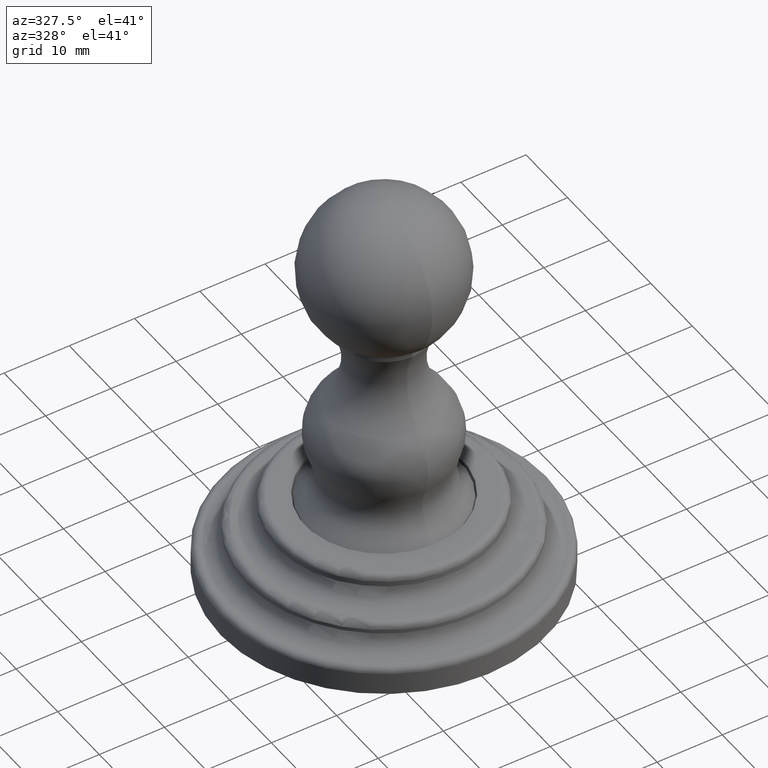
[diagram: clean part render]
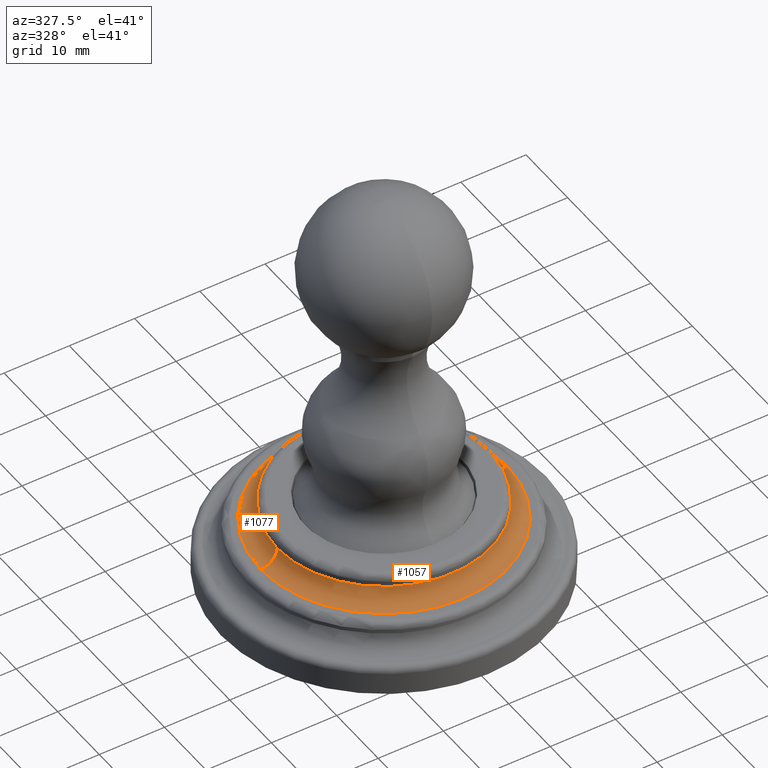
[diagram: same view with one multi-face feature highlighted, each face labeled with its STEP entity id]
A machine part, auxiliary view. The highlighted faces form ONE feature: a constant-radius fillet chain: 2 tangent blend faces with common blend radius 2.4892 mm. The faces share edges in the B-rep.
Their STEP definitions:
[1] entity #1077 (Torus):
#354=CARTESIAN_POINT('',(-7.44E-1,0.E0,4.3E-1));
#355=DIRECTION('',(0.E0,-1.E0,0.E0));
#356=DIRECTION('',(0.E0,0.E0,-1.E0));
#357=AXIS2_PLACEMENT_3D('',#354,#355,#356);
#362=CARTESIAN_POINT('',(-1.228711626521E-14,0.E0,3.32E-1));
#363=DIRECTION('',(0.E0,0.E0,-1.E0));
#364=DIRECTION('',(-1.E0,0.E0,0.E0));
#365=AXIS2_PLACEMENT_3D('',#362,#363,#364);
#370=CARTESIAN_POINT('',(7.44E-1,0.E0,4.3E-1));
#371=DIRECTION('',(0.E0,1.E0,0.E0));
#372=DIRECTION('',(0.E0,0.E0,-1.E0));
#373=AXIS2_PLACEMENT_3D('',#370,#371,#372);
#393=CARTESIAN_POINT('',(-1.229911780384E-14,0.E0,4.3E-1));
#394=DIRECTION('',(0.E0,0.E0,-1.E0));
#395=DIRECTION('',(-1.E0,0.E0,0.E0));
#396=AXIS2_PLACEMENT_3D('',#393,#394,#395);
#694=CARTESIAN_POINT('',(-7.44E-1,0.E0,3.32E-1));
#695=CARTESIAN_POINT('',(-6.46E-1,0.E0,4.3E-1));
#696=VERTEX_POINT('',#694);
#697=VERTEX_POINT('',#695);
#702=CARTESIAN_POINT('',(7.44E-1,0.E0,3.32E-1));
#703=CARTESIAN_POINT('',(6.46E-1,0.E0,4.3E-1));
#704=VERTEX_POINT('',#702);
#705=VERTEX_POINT('',#703);
#1065=CARTESIAN_POINT('',(-1.229911780384E-14,0.E0,4.3E-1));
#1066=DIRECTION('',(0.E0,0.E0,1.E0));
#1067=DIRECTION('',(-1.E0,0.E0,0.E0));
#1068=AXIS2_PLACEMENT_3D('',#1065,#1066,#1067);
#1069=TOROIDAL_SURFACE('',#1068,7.44E-1,9.8E-2);
#1070=ORIENTED_EDGE('',*,*,#1048,.F.);
#1071=ORIENTED_EDGE('',*,*,#992,.T.);
#1072=ORIENTED_EDGE('',*,*,#1052,.T.);
#1074=ORIENTED_EDGE('',*,*,#1073,.F.);
#1075=EDGE_LOOP('',(#1070,#1071,#1072,#1074));
#1076=FACE_OUTER_BOUND('',#1075,.F.);
#358=CIRCLE('',#357,9.8E-2);
#366=CIRCLE('',#365,7.44E-1);
#374=CIRCLE('',#373,9.8E-2);
#397=CIRCLE('',#396,6.46E-1);
#992=EDGE_CURVE('',#696,#704,#366,.T.);
#1048=EDGE_CURVE('',#696,#697,#358,.T.);
#1052=EDGE_CURVE('',#704,#705,#374,.T.);
#1073=EDGE_CURVE('',#697,#705,#397,.T.);
#1077=ADVANCED_FACE('',(#1076),#1069,.F.);
[2] entity #1057 (Torus):
#346=CARTESIAN_POINT('',(-1.228711626521E-14,0.E0,3.32E-1));
#347=DIRECTION('',(0.E0,0.E0,1.E0));
#348=DIRECTION('',(-1.E0,0.E0,0.E0));
#349=AXIS2_PLACEMENT_3D('',#346,#347,#348);
#354=CARTESIAN_POINT('',(-7.44E-1,0.E0,4.3E-1));
#355=DIRECTION('',(0.E0,-1.E0,0.E0));
#356=DIRECTION('',(0.E0,0.E0,-1.E0));
#357=AXIS2_PLACEMENT_3D('',#354,#355,#356);
#370=CARTESIAN_POINT('',(7.44E-1,0.E0,4.3E-1));
#371=DIRECTION('',(0.E0,1.E0,0.E0));
#372=DIRECTION('',(0.E0,0.E0,-1.E0));
#373=AXIS2_PLACEMENT_3D('',#370,#371,#372);
#464=CARTESIAN_POINT('',(-1.229911780384E-14,0.E0,4.3E-1));
#465=DIRECTION('',(0.E0,0.E0,1.E0));
#466=DIRECTION('',(-1.E0,0.E0,0.E0));
#467=AXIS2_PLACEMENT_3D('',#464,#465,#466);
#694=CARTESIAN_POINT('',(-7.44E-1,0.E0,3.32E-1));
#695=CARTESIAN_POINT('',(-6.46E-1,0.E0,4.3E-1));
#696=VERTEX_POINT('',#694);
#697=VERTEX_POINT('',#695);
#702=CARTESIAN_POINT('',(7.44E-1,0.E0,3.32E-1));
#703=CARTESIAN_POINT('',(6.46E-1,0.E0,4.3E-1));
#704=VERTEX_POINT('',#702);
#705=VERTEX_POINT('',#703);
#1043=CARTESIAN_POINT('',(-1.229911780384E-14,0.E0,4.3E-1));
#1044=DIRECTION('',(0.E0,0.E0,1.E0));
#1045=DIRECTION('',(-1.E0,0.E0,0.E0));
#1046=AXIS2_PLACEMENT_3D('',#1043,#1044,#1045);
#1047=TOROIDAL_SURFACE('',#1046,7.44E-1,9.8E-2);
#1049=ORIENTED_EDGE('',*,*,#1048,.T.);
#1051=ORIENTED_EDGE('',*,*,#1050,.T.);
#1053=ORIENTED_EDGE('',*,*,#1052,.F.);
#1054=ORIENTED_EDGE('',*,*,#990,.F.);
#1055=EDGE_LOOP('',(#1049,#1051,#1053,#1054));
#1056=FACE_OUTER_BOUND('',#1055,.F.);
#350=CIRCLE('',#349,7.44E-1);
#358=CIRCLE('',#357,9.8E-2);
#374=CIRCLE('',#373,9.8E-2);
#468=CIRCLE('',#467,6.46E-1);
#990=EDGE_CURVE('',#696,#704,#350,.T.);
#1048=EDGE_CURVE('',#696,#697,#358,.T.);
#1050=EDGE_CURVE('',#697,#705,#468,.T.);
#1052=EDGE_CURVE('',#704,#705,#374,.T.);
#1057=ADVANCED_FACE('',(#1056),#1047,.F.);